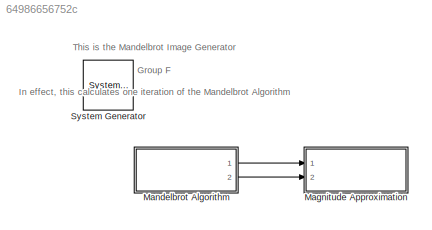
MODEL slx_64986656752c
KIND model
CONFIG AbsTol = auto
CONFIG EnableMultiTasking = off
CONFIG FixedStep = auto
CONFIG MaxStep = auto
CONFIG MinStep = auto
CONFIG RelTol = 1e-3
CONFIG SampleTimeConstraint = Unconstrained
CONFIG Solver = VariableStepAuto
CONFIG SolverName = VariableStepAuto
CONFIG StartTime = 0.0
CONFIG StopTime = 500.0
BLOCK [Reference]  System Generator  REF=xbsIndex_r4/ System Generator
  AttributesFormatString = System\nGenerator
  Ports = []
  SourceBlock = xbsIndex_r4/ System Generator
  SourceType = Xilinx System Generator Block
  Tag = genX
  UserDataPersistent = on
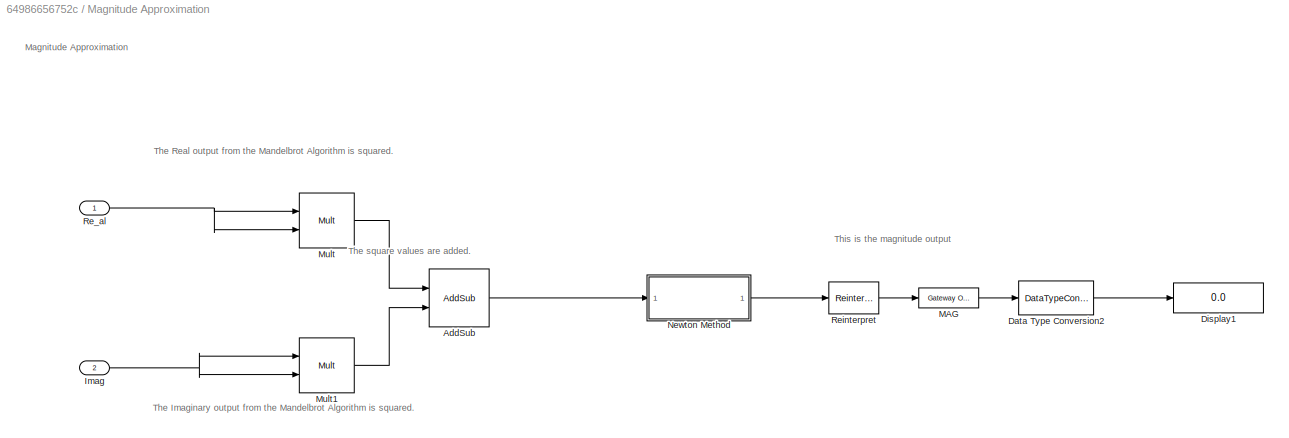
BLOCK [SubSystem] Magnitude Approximation
  Ports = [2]
  RequestExecContextInheritance = off
BLOCK [Reference] Magnitude Approximation/AddSub  REF=xbsIndex_r4/AddSub
  Ports = [2, 1]
  SourceBlock = xbsIndex_r4/AddSub
  SourceType = Xilinx Adder/Subtracter Block
BLOCK [DataTypeConversion] Magnitude Approximation/Data Type Conversion2
  ConvertRealWorld = Stored Integer (SI)
  RndMeth = Floor
  SaturateOnIntegerOverflow = off
BLOCK [Display] Magnitude Approximation/Display1
  Decimation = 1
  Ports = [1]
BLOCK [Inport] Magnitude Approximation/Imag
  Port = 2
BLOCK [Reference] Magnitude Approximation/MAG  REF=xbsIndex_r4/Gateway Out
  Ports = [1, 1]
  SourceBlock = xbsIndex_r4/Gateway Out
  SourceType = Xilinx Gateway Out Block
BLOCK [Reference] Magnitude Approximation/Mult  REF=xbsIndex_r4/Mult
  Ports = [2, 1]
  SourceBlock = xbsIndex_r4/Mult
  SourceType = Xilinx Multiplier Block
BLOCK [Reference] Magnitude Approximation/Mult1  REF=xbsIndex_r4/Mult
  Ports = [2, 1]
  SourceBlock = xbsIndex_r4/Mult
  SourceType = Xilinx Multiplier Block
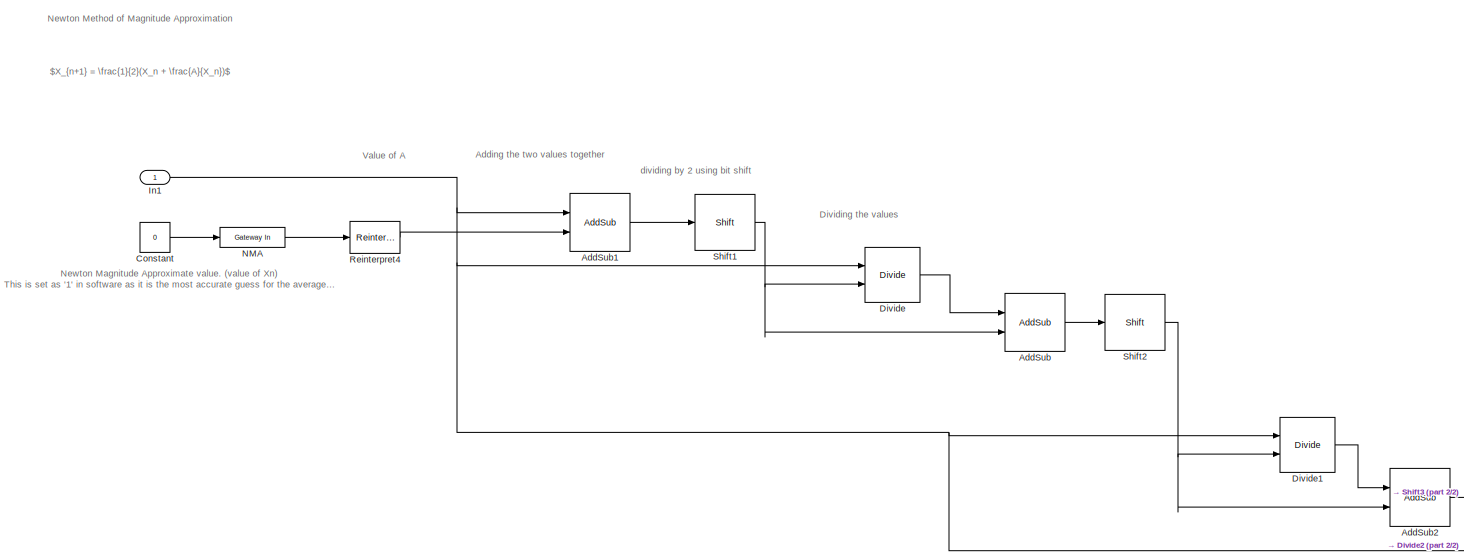
[diagram: Magnitude Approximation/Newton Method - part 1/2, center side, full height]
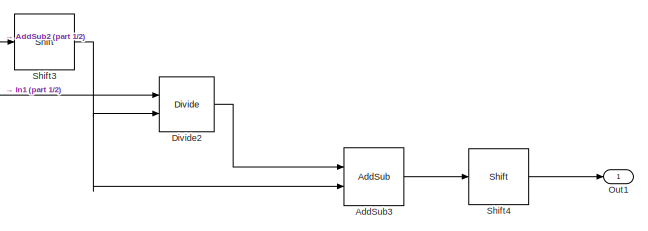
[diagram: Magnitude Approximation/Newton Method - part 2/2, bottom right region]
BLOCK [SubSystem] Magnitude Approximation/Newton Method
  Ports = [1, 1]
  RequestExecContextInheritance = off
BLOCK [Reference] Magnitude Approximation/Newton Method/AddSub  REF=xbsIndex_r4/AddSub
  Ports = [2, 1]
  SourceBlock = xbsIndex_r4/AddSub
  SourceType = Xilinx Adder/Subtracter Block
BLOCK [Reference] Magnitude Approximation/Newton Method/AddSub1  REF=xbsIndex_r4/AddSub
  Ports = [2, 1]
  SourceBlock = xbsIndex_r4/AddSub
  SourceType = Xilinx Adder/Subtracter Block
BLOCK [Reference] Magnitude Approximation/Newton Method/AddSub2  REF=xbsIndex_r4/AddSub
  Ports = [2, 1]
  SourceBlock = xbsIndex_r4/AddSub
  SourceType = Xilinx Adder/Subtracter Block
BLOCK [Reference] Magnitude Approximation/Newton Method/AddSub3  REF=xbsIndex_r4/AddSub
  Ports = [2, 1]
  SourceBlock = xbsIndex_r4/AddSub
  SourceType = Xilinx Adder/Subtracter Block
BLOCK [Constant] Magnitude Approximation/Newton Method/Constant
  Value = 0
BLOCK [Reference] Magnitude Approximation/Newton Method/Divide  REF=xbsIndex_r4/Divide
  Ports = [2, 1]
  SourceBlock = xbsIndex_r4/Divide
  SourceType = Xilinx Divider Block
BLOCK [Reference] Magnitude Approximation/Newton Method/Divide1  REF=xbsIndex_r4/Divide
  Ports = [2, 1]
  SourceBlock = xbsIndex_r4/Divide
  SourceType = Xilinx Divider Block
BLOCK [Reference] Magnitude Approximation/Newton Method/Divide2  REF=xbsIndex_r4/Divide
  Ports = [2, 1]
  SourceBlock = xbsIndex_r4/Divide
  SourceType = Xilinx Divider Block
BLOCK [Inport] Magnitude Approximation/Newton Method/In1
BLOCK [Reference] Magnitude Approximation/Newton Method/NMA  REF=xbsIndex_r4/Gateway In
  Ports = [1, 1]
  SourceBlock = xbsIndex_r4/Gateway In
  SourceType = Xilinx Gateway In Block
BLOCK [Outport] Magnitude Approximation/Newton Method/Out1
BLOCK [Reference] Magnitude Approximation/Newton Method/Reinterpret4  REF=xbsIndex_r4/Reinterpret
  Ports = [1, 1]
  SourceBlock = xbsIndex_r4/Reinterpret
  SourceType = Xilinx Type Reinterpreter Block
BLOCK [Reference] Magnitude Approximation/Newton Method/Shift1  REF=xbsIndex_r4/Shift
  Ports = [1, 1]
  SourceBlock = xbsIndex_r4/Shift
  SourceType = Xilinx Binary Shift Operator Block
BLOCK [Reference] Magnitude Approximation/Newton Method/Shift2  REF=xbsIndex_r4/Shift
  Ports = [1, 1]
  SourceBlock = xbsIndex_r4/Shift
  SourceType = Xilinx Binary Shift Operator Block
BLOCK [Reference] Magnitude Approximation/Newton Method/Shift3  REF=xbsIndex_r4/Shift
  Ports = [1, 1]
  SourceBlock = xbsIndex_r4/Shift
  SourceType = Xilinx Binary Shift Operator Block
BLOCK [Reference] Magnitude Approximation/Newton Method/Shift4  REF=xbsIndex_r4/Shift
  Ports = [1, 1]
  SourceBlock = xbsIndex_r4/Shift
  SourceType = Xilinx Binary Shift Operator Block
BLOCK [Inport] Magnitude Approximation/Re_al
BLOCK [Reference] Magnitude Approximation/Reinterpret  REF=xbsIndex_r4/Reinterpret
  Ports = [1, 1]
  SourceBlock = xbsIndex_r4/Reinterpret
  SourceType = Xilinx Type Reinterpreter Block
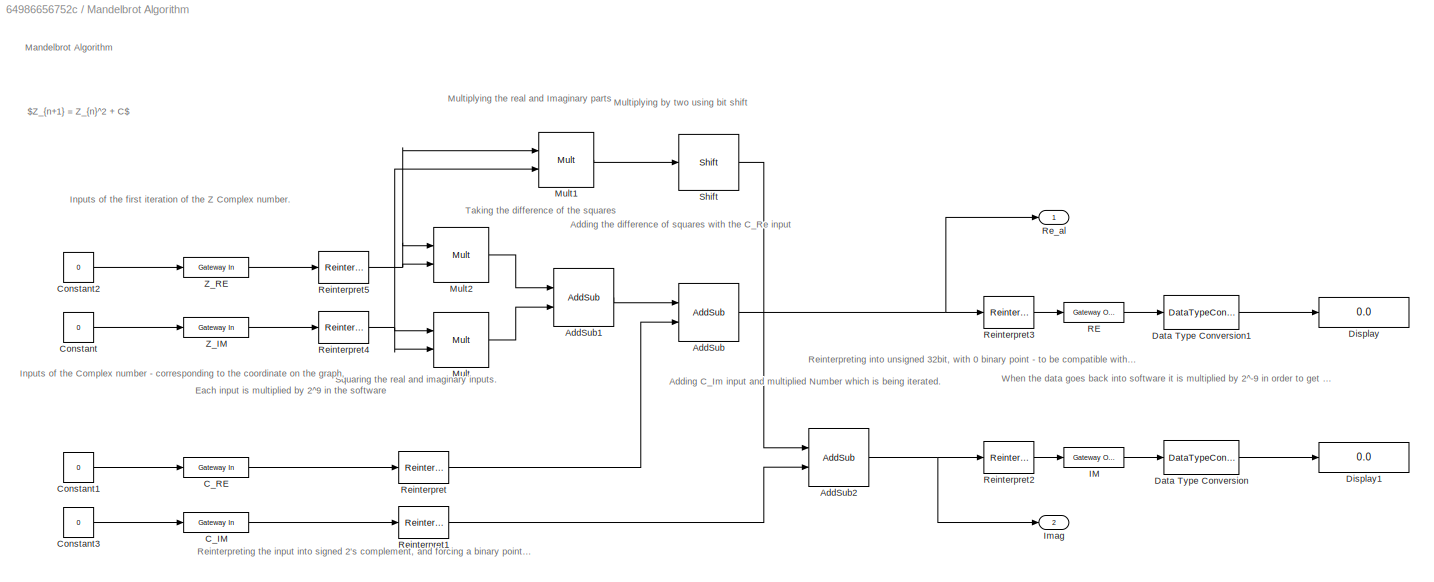
BLOCK [SubSystem] Mandelbrot Algorithm
  Ports = [0, 2]
  RequestExecContextInheritance = off
BLOCK [Reference] Mandelbrot Algorithm/AddSub  REF=xbsIndex_r4/AddSub
  Ports = [2, 1]
  SourceBlock = xbsIndex_r4/AddSub
  SourceType = Xilinx Adder/Subtracter Block
BLOCK [Reference] Mandelbrot Algorithm/AddSub1  REF=xbsIndex_r4/AddSub
  Ports = [2, 1]
  SourceBlock = xbsIndex_r4/AddSub
  SourceType = Xilinx Adder/Subtracter Block
BLOCK [Reference] Mandelbrot Algorithm/AddSub2  REF=xbsIndex_r4/AddSub
  Ports = [2, 1]
  SourceBlock = xbsIndex_r4/AddSub
  SourceType = Xilinx Adder/Subtracter Block
BLOCK [Reference] Mandelbrot Algorithm/C_IM  REF=xbsIndex_r4/Gateway In
  Ports = [1, 1]
  SourceBlock = xbsIndex_r4/Gateway In
  SourceType = Xilinx Gateway In Block
BLOCK [Reference] Mandelbrot Algorithm/C_RE  REF=xbsIndex_r4/Gateway In
  Ports = [1, 1]
  SourceBlock = xbsIndex_r4/Gateway In
  SourceType = Xilinx Gateway In Block
BLOCK [Constant] Mandelbrot Algorithm/Constant
  Value = 0
BLOCK [Constant] Mandelbrot Algorithm/Constant1
  Value = 0
BLOCK [Constant] Mandelbrot Algorithm/Constant2
  Value = 0
BLOCK [Constant] Mandelbrot Algorithm/Constant3
  Value = 0
BLOCK [DataTypeConversion] Mandelbrot Algorithm/Data Type Conversion
  ConvertRealWorld = Stored Integer (SI)
  RndMeth = Floor
  SaturateOnIntegerOverflow = off
BLOCK [DataTypeConversion] Mandelbrot Algorithm/Data Type Conversion1
  ConvertRealWorld = Stored Integer (SI)
  RndMeth = Floor
  SaturateOnIntegerOverflow = off
BLOCK [Display] Mandelbrot Algorithm/Display
  Decimation = 1
  Ports = [1]
BLOCK [Display] Mandelbrot Algorithm/Display1
  Decimation = 1
  Ports = [1]
BLOCK [Reference] Mandelbrot Algorithm/IM  REF=xbsIndex_r4/Gateway Out
  Ports = [1, 1]
  SourceBlock = xbsIndex_r4/Gateway Out
  SourceType = Xilinx Gateway Out Block
BLOCK [Outport] Mandelbrot Algorithm/Imag
  Port = 2
BLOCK [Reference] Mandelbrot Algorithm/Mult  REF=xbsIndex_r4/Mult
  Ports = [2, 1]
  SourceBlock = xbsIndex_r4/Mult
  SourceType = Xilinx Multiplier Block
BLOCK [Reference] Mandelbrot Algorithm/Mult1  REF=xbsIndex_r4/Mult
  Ports = [2, 1]
  SourceBlock = xbsIndex_r4/Mult
  SourceType = Xilinx Multiplier Block
BLOCK [Reference] Mandelbrot Algorithm/Mult2  REF=xbsIndex_r4/Mult
  Ports = [2, 1]
  SourceBlock = xbsIndex_r4/Mult
  SourceType = Xilinx Multiplier Block
BLOCK [Reference] Mandelbrot Algorithm/RE  REF=xbsIndex_r4/Gateway Out
  Ports = [1, 1]
  SourceBlock = xbsIndex_r4/Gateway Out
  SourceType = Xilinx Gateway Out Block
BLOCK [Outport] Mandelbrot Algorithm/Re_al
BLOCK [Reference] Mandelbrot Algorithm/Reinterpret  REF=xbsIndex_r4/Reinterpret
  Ports = [1, 1]
  SourceBlock = xbsIndex_r4/Reinterpret
  SourceType = Xilinx Type Reinterpreter Block
BLOCK [Reference] Mandelbrot Algorithm/Reinterpret1  REF=xbsIndex_r4/Reinterpret
  Ports = [1, 1]
  SourceBlock = xbsIndex_r4/Reinterpret
  SourceType = Xilinx Type Reinterpreter Block
BLOCK [Reference] Mandelbrot Algorithm/Reinterpret2  REF=xbsIndex_r4/Reinterpret
  Ports = [1, 1]
  SourceBlock = xbsIndex_r4/Reinterpret
  SourceType = Xilinx Type Reinterpreter Block
BLOCK [Reference] Mandelbrot Algorithm/Reinterpret3  REF=xbsIndex_r4/Reinterpret
  Ports = [1, 1]
  SourceBlock = xbsIndex_r4/Reinterpret
  SourceType = Xilinx Type Reinterpreter Block
BLOCK [Reference] Mandelbrot Algorithm/Reinterpret4  REF=xbsIndex_r4/Reinterpret
  Ports = [1, 1]
  SourceBlock = xbsIndex_r4/Reinterpret
  SourceType = Xilinx Type Reinterpreter Block
BLOCK [Reference] Mandelbrot Algorithm/Reinterpret5  REF=xbsIndex_r4/Reinterpret
  Ports = [1, 1]
  SourceBlock = xbsIndex_r4/Reinterpret
  SourceType = Xilinx Type Reinterpreter Block
BLOCK [Reference] Mandelbrot Algorithm/Shift  REF=xbsIndex_r4/Shift
  Ports = [1, 1]
  SourceBlock = xbsIndex_r4/Shift
  SourceType = Xilinx Binary Shift Operator Block
BLOCK [Reference] Mandelbrot Algorithm/Z_IM  REF=xbsIndex_r4/Gateway In
  Ports = [1, 1]
  SourceBlock = xbsIndex_r4/Gateway In
  SourceType = Xilinx Gateway In Block
BLOCK [Reference] Mandelbrot Algorithm/Z_RE  REF=xbsIndex_r4/Gateway In
  Ports = [1, 1]
  SourceBlock = xbsIndex_r4/Gateway In
  SourceType = Xilinx Gateway In Block
ANNOTATION (root): This is the Mandelbrot Image Generator Group F In effect, this calculates one iteration of the Mandelbrot Algorithm
ANNOTATION Magnitude Approximation: Magnitude Approximation
ANNOTATION Magnitude Approximation: The Imaginary output from the Mandelbrot Algorithm is squared.
ANNOTATION Magnitude Approximation: The Real output from the Mandelbrot Algorithm is squared.
ANNOTATION Magnitude Approximation: The square values are added.
ANNOTATION Magnitude Approximation: This is the magnitude output
ANNOTATION Magnitude Approximation/Newton Method: Newton Method of Magnitude Approximation
ANNOTATION Magnitude Approximation/Newton Method: $X_{n+1} = \frac{1}{2}(X_n + \frac{A}{X_n})$
ANNOTATION Magnitude Approximation/Newton Method: Adding the two values together
ANNOTATION Magnitude Approximation/Newton Method: Dividing the values
ANNOTATION Magnitude Approximation/Newton Method: Newton Magnitude Approximate value. (value of Xn) This is set as '1' in software as it is the most accurate guess for the average range of values that are passed through this system.This yields the highest efficiency for the algorithm utilisng the minimum amount of resources.
ANNOTATION Magnitude Approximation/Newton Method: Value of A
ANNOTATION Magnitude Approximation/Newton Method: dividing by 2 using bit shift
ANNOTATION Mandelbrot Algorithm: Mandelbrot Algorithm
ANNOTATION Mandelbrot Algorithm: $Z_{n+1} = Z_{n}^2 + C$
ANNOTATION Mandelbrot Algorithm: Adding C_Im input and multiplied Number which is being iterated.
ANNOTATION Mandelbrot Algorithm: Adding the difference of squares with the C_Re input
ANNOTATION Mandelbrot Algorithm: Each input is multiplied by 2^9 in the software
ANNOTATION Mandelbrot Algorithm: Inputs of the Complex number - corresponding to the coordinate on the graph,
ANNOTATION Mandelbrot Algorithm: Inputs of the first iteration of the Z Complex number.
ANNOTATION Mandelbrot Algorithm: Multiplying by two using bit shift
ANNOTATION Mandelbrot Algorithm: Multiplying the real and Imaginary parts
ANNOTATION Mandelbrot Algorithm: Reinterpreting into unsigned 32bit, with 0 binary point - to be compatible with jupyter
ANNOTATION Mandelbrot Algorithm: Reinterpreting the input into signed 2's complement, and forcing a binary point at 9.
ANNOTATION Mandelbrot Algorithm: Squaring the real and imaginary inputs.
ANNOTATION Mandelbrot Algorithm: Taking the difference of the squares
ANNOTATION Mandelbrot Algorithm: When the data goes back into software it is multiplied by 2^-9 in order to get original value
LINE Magnitude Approximation/AddSub:1 -> Magnitude Approximation/Newton Method:1
LINE Magnitude Approximation/Data Type Conversion2:1 -> Magnitude Approximation/Display1:1
NET Magnitude Approximation/Imag:1 -> Magnitude Approximation/Mult1:1, Magnitude Approximation/Mult1:2
LINE Magnitude Approximation/MAG:1 -> Magnitude Approximation/Data Type Conversion2:1
LINE Magnitude Approximation/Mult1:1 -> Magnitude Approximation/AddSub:2
LINE Magnitude Approximation/Mult:1 -> Magnitude Approximation/AddSub:1
LINE Magnitude Approximation/Newton Method/AddSub1:1 -> Magnitude Approximation/Newton Method/Shift1:1
LINE Magnitude Approximation/Newton Method/AddSub2:1 -> Magnitude Approximation/Newton Method/Shift3:1
LINE Magnitude Approximation/Newton Method/AddSub3:1 -> Magnitude Approximation/Newton Method/Shift4:1
LINE Magnitude Approximation/Newton Method/AddSub:1 -> Magnitude Approximation/Newton Method/Shift2:1
LINE Magnitude Approximation/Newton Method/Constant:1 -> Magnitude Approximation/Newton Method/NMA:1
LINE Magnitude Approximation/Newton Method/Divide1:1 -> Magnitude Approximation/Newton Method/AddSub2:1
LINE Magnitude Approximation/Newton Method/Divide2:1 -> Magnitude Approximation/Newton Method/AddSub3:1
LINE Magnitude Approximation/Newton Method/Divide:1 -> Magnitude Approximation/Newton Method/AddSub:1
NET Magnitude Approximation/Newton Method/In1:1 -> Magnitude Approximation/Newton Method/AddSub1:1, Magnitude Approximation/Newton Method/Divide1:1, Magnitude Approximation/Newton Method/Divide2:1, Magnitude Approximation/Newton Method/Divide:1
LINE Magnitude Approximation/Newton Method/NMA:1 -> Magnitude Approximation/Newton Method/Reinterpret4:1
LINE Magnitude Approximation/Newton Method/Reinterpret4:1 -> Magnitude Approximation/Newton Method/AddSub1:2
NET Magnitude Approximation/Newton Method/Shift1:1 -> Magnitude Approximation/Newton Method/AddSub:2, Magnitude Approximation/Newton Method/Divide:2
NET Magnitude Approximation/Newton Method/Shift2:1 -> Magnitude Approximation/Newton Method/AddSub2:2, Magnitude Approximation/Newton Method/Divide1:2
NET Magnitude Approximation/Newton Method/Shift3:1 -> Magnitude Approximation/Newton Method/AddSub3:2, Magnitude Approximation/Newton Method/Divide2:2
LINE Magnitude Approximation/Newton Method/Shift4:1 -> Magnitude Approximation/Newton Method/Out1:1
LINE Magnitude Approximation/Newton Method:1 -> Magnitude Approximation/Reinterpret:1
NET Magnitude Approximation/Re_al:1 -> Magnitude Approximation/Mult:1, Magnitude Approximation/Mult:2
LINE Magnitude Approximation/Reinterpret:1 -> Magnitude Approximation/MAG:1
LINE Mandelbrot Algorithm/AddSub1:1 -> Mandelbrot Algorithm/AddSub:1
NET Mandelbrot Algorithm/AddSub2:1 -> Mandelbrot Algorithm/Imag:1, Mandelbrot Algorithm/Reinterpret2:1
NET Mandelbrot Algorithm/AddSub:1 -> Mandelbrot Algorithm/Re_al:1, Mandelbrot Algorithm/Reinterpret3:1
LINE Mandelbrot Algorithm/C_IM:1 -> Mandelbrot Algorithm/Reinterpret1:1
LINE Mandelbrot Algorithm/C_RE:1 -> Mandelbrot Algorithm/Reinterpret:1
LINE Mandelbrot Algorithm/Constant1:1 -> Mandelbrot Algorithm/C_RE:1
LINE Mandelbrot Algorithm/Constant2:1 -> Mandelbrot Algorithm/Z_RE:1
LINE Mandelbrot Algorithm/Constant3:1 -> Mandelbrot Algorithm/C_IM:1
LINE Mandelbrot Algorithm/Constant:1 -> Mandelbrot Algorithm/Z_IM:1
LINE Mandelbrot Algorithm/Data Type Conversion1:1 -> Mandelbrot Algorithm/Display:1
LINE Mandelbrot Algorithm/Data Type Conversion:1 -> Mandelbrot Algorithm/Display1:1
LINE Mandelbrot Algorithm/IM:1 -> Mandelbrot Algorithm/Data Type Conversion:1
LINE Mandelbrot Algorithm/Mult1:1 -> Mandelbrot Algorithm/Shift:1
LINE Mandelbrot Algorithm/Mult2:1 -> Mandelbrot Algorithm/AddSub1:1
LINE Mandelbrot Algorithm/Mult:1 -> Mandelbrot Algorithm/AddSub1:2
LINE Mandelbrot Algorithm/RE:1 -> Mandelbrot Algorithm/Data Type Conversion1:1
LINE Mandelbrot Algorithm/Reinterpret1:1 -> Mandelbrot Algorithm/AddSub2:2
LINE Mandelbrot Algorithm/Reinterpret2:1 -> Mandelbrot Algorithm/IM:1
LINE Mandelbrot Algorithm/Reinterpret3:1 -> Mandelbrot Algorithm/RE:1
NET Mandelbrot Algorithm/Reinterpret4:1 -> Mandelbrot Algorithm/Mult1:2, Mandelbrot Algorithm/Mult:1, Mandelbrot Algorithm/Mult:2
NET Mandelbrot Algorithm/Reinterpret5:1 -> Mandelbrot Algorithm/Mult1:1, Mandelbrot Algorithm/Mult2:1, Mandelbrot Algorithm/Mult2:2
LINE Mandelbrot Algorithm/Reinterpret:1 -> Mandelbrot Algorithm/AddSub:2
LINE Mandelbrot Algorithm/Shift:1 -> Mandelbrot Algorithm/AddSub2:1
LINE Mandelbrot Algorithm/Z_IM:1 -> Mandelbrot Algorithm/Reinterpret4:1
LINE Mandelbrot Algorithm/Z_RE:1 -> Mandelbrot Algorithm/Reinterpret5:1
LINE Mandelbrot Algorithm:1 -> Magnitude Approximation:1
LINE Mandelbrot Algorithm:2 -> Magnitude Approximation:2
note: NET lines group one-source signal fan-out (src -> all destinations, sorted); 1:1 wires keep LINE
